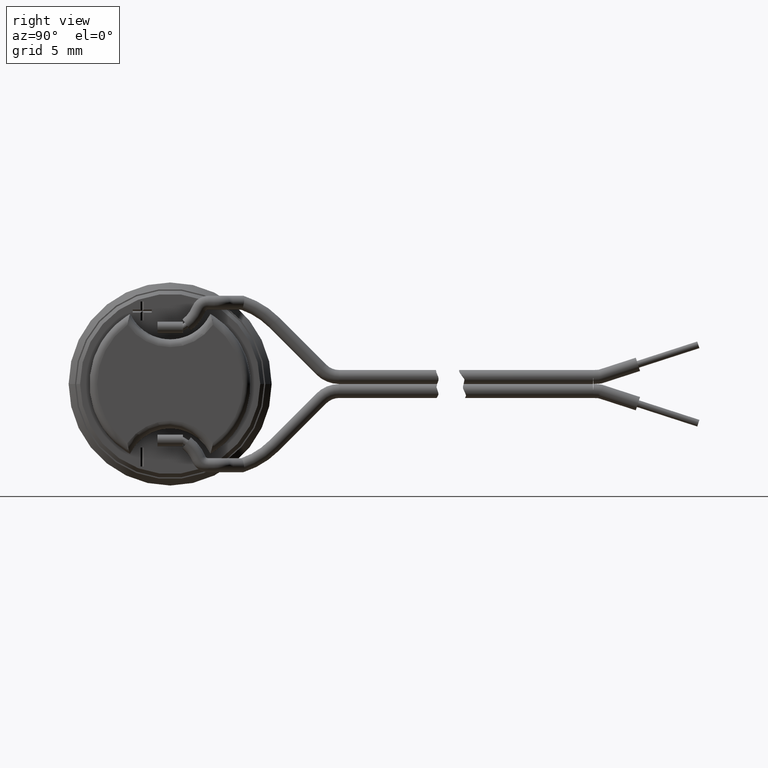
[diagram: clean part render]
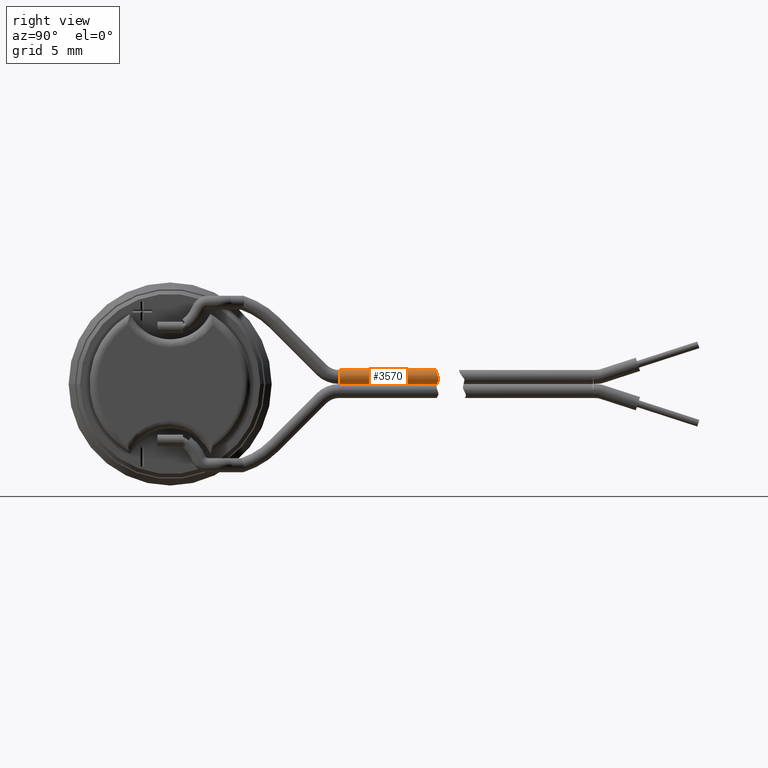
[diagram: same view with one face highlighted and labeled with its STEP entity id]
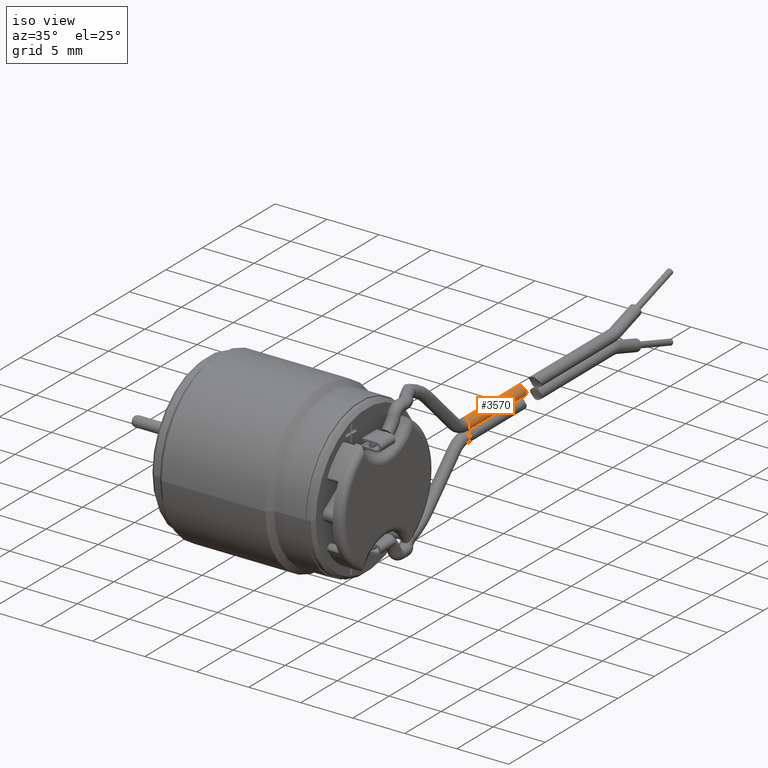
[diagram: same view with one face highlighted and labeled with its STEP entity id]
A machine part, right view. The second image highlights one B-rep face of the part: STEP entity #3570.
A second angle (iso view) of the same face is appended — the face is thin or edge-on in the first view.
In plain terms, the highlighted cylindrical surface (edge-blend (fillet) strip) has radius 0.55 mm, axis along (0, -1, 0).
Its self-contained STEP definition (entity closure, byte-faithful):
#394=CARTESIAN_POINT('',(2.240032756674E1,2.102917383916E1,-1.299233651828E-5));
#395=CARTESIAN_POINT('',(2.240662835466E1,2.102918072175E1,-1.299233651828E-5));
#396=CARTESIAN_POINT('',(2.241921226603E1,2.102943670138E1,1.036567337196E-3));
#397=CARTESIAN_POINT('',(2.243055763169E1,2.102915775201E1,-7.604514990970E-4));
#398=CARTESIAN_POINT('',(2.243684883472E1,2.102930460886E1,-3.271544999782E-4));
#400=DIRECTION('',(-4.252688399169E-5,-9.999999990943E-1,1.686751175852E-6));
#401=VECTOR('',#400,7.702580383094E0);
#402=CARTESIAN_POINT('',(2.240032756674E1,2.102917383916E1,-1.299233651828E-5));
#403=LINE('',#402,#401);
#404=CARTESIAN_POINT('',(2.243684883472E1,2.102930460886E1,-3.271544999782E-4));
#405=CARTESIAN_POINT('',(2.247929046929E1,2.103043461863E1,2.595948254658E-3));
#406=CARTESIAN_POINT('',(2.256434211359E1,2.103698319575E1,2.053481707774E-2));
#407=CARTESIAN_POINT('',(2.268145331142E1,2.105822283408E1,7.173819867061E-2));
#408=CARTESIAN_POINT('',(2.277832393670E1,2.108933735637E1,1.453775409042E-1));
#409=CARTESIAN_POINT('',(2.285229027858E1,2.112161624040E1,2.299739857906E-1));
#410=CARTESIAN_POINT('',(2.291433783856E1,2.115187070604E1,3.399565897218E-1));
#411=CARTESIAN_POINT('',(2.295139514514E1,2.114644704098E1,4.772950183468E-1));
#412=CARTESIAN_POINT('',(2.295176272406E1,2.110221046246E1,6.194673502704E-1));
#413=CARTESIAN_POINT('',(2.291502699354E1,2.104050357782E1,7.624170571036E-1));
#414=CARTESIAN_POINT('',(2.283383874046E1,2.098221698270E1,9.011612429808E-1));
#415=CARTESIAN_POINT('',(2.271122430566E1,2.095009002747E1,1.013364216562E0));
#416=CARTESIAN_POINT('',(2.256279798835E1,2.094162562422E1,1.083766945064E0));
#417=CARTESIAN_POINT('',(2.245425088054E1,2.094138193239E1,1.1E0));
#418=CARTESIAN_POINT('',(2.24E1,2.094138193239E1,1.1E0));
#420=CARTESIAN_POINT('',(2.24E1,2.094138193239E1,1.1E0));
#434=CARTESIAN_POINT('',(2.240032756674E1,2.102917383916E1,-1.299233651828E-5));
#436=DIRECTION('',(0.E0,-1.E0,0.E0));
#437=VECTOR('',#436,7.614788469354E0);
#438=CARTESIAN_POINT('',(2.24E1,2.094138193239E1,1.1E0));
#439=LINE('',#438,#437);
#458=CARTESIAN_POINT('',(2.243684883472E1,2.102930460886E1,-3.271544999782E-4));
#479=CARTESIAN_POINT('',(2.24E1,1.332659346304E1,5.5E-1));
#480=DIRECTION('',(0.E0,-1.E0,0.E0));
#481=DIRECTION('',(0.E0,0.E0,-1.E0));
#482=AXIS2_PLACEMENT_3D('',#479,#480,#481);
#2911=CARTESIAN_POINT('',(2.24E1,1.332659346304E1,0.E0));
#2912=CARTESIAN_POINT('',(2.24E1,1.332659346304E1,1.1E0));
#2913=VERTEX_POINT('',#2911);
#2914=VERTEX_POINT('',#2912);
#3106=VERTEX_POINT('',#458);
#3107=VERTEX_POINT('',#420);
#3108=VERTEX_POINT('',#434);
#3554=CARTESIAN_POINT('',(2.24E1,3.332659346304E1,5.5E-1));
#3555=DIRECTION('',(0.E0,-1.E0,0.E0));
#3556=DIRECTION('',(0.E0,0.E0,-1.E0));
#3557=AXIS2_PLACEMENT_3D('',#3554,#3555,#3556);
#3558=CYLINDRICAL_SURFACE('',#3557,5.5E-1);
#3559=ORIENTED_EDGE('',*,*,#3542,.F.);
#3561=ORIENTED_EDGE('',*,*,#3560,.T.);
#3563=ORIENTED_EDGE('',*,*,#3562,.T.);
#3565=ORIENTED_EDGE('',*,*,#3564,.F.);
#3567=ORIENTED_EDGE('',*,*,#3566,.F.);
#3568=EDGE_LOOP('',(#3559,#3561,#3563,#3565,#3567));
#3569=FACE_OUTER_BOUND('',#3568,.F.);
#3570=ADVANCED_FACE('',(#3569),#3558,.T.);
#399=B_SPLINE_CURVE_WITH_KNOTS('',3,(#394,#395,#396,#397,#398),.UNSPECIFIED.,
.F.,.F.,(4,1,4),(0.E0,5.E-1,1.E0),.UNSPECIFIED.);
#419=B_SPLINE_CURVE_WITH_KNOTS('',3,(#404,#405,#406,#407,#408,#409,#410,#411,
#412,#413,#414,#415,#416,#417,#418),.UNSPECIFIED.,.F.,.F.,(4,1,1,1,1,1,1,1,1,1,
1,1,4),(0.E0,8.333333333333E-2,1.666666666667E-1,2.5E-1,3.333333333333E-1,
4.166666666667E-1,5.E-1,5.833333333333E-1,6.666666666667E-1,7.5E-1,
8.333333333333E-1,9.166666666667E-1,1.E0),.UNSPECIFIED.);
#483=CIRCLE('',#482,5.5E-1);
#3542=EDGE_CURVE('',#3108,#3106,#399,.T.);
#3560=EDGE_CURVE('',#3108,#2913,#403,.T.);
#3562=EDGE_CURVE('',#2913,#2914,#483,.T.);
#3564=EDGE_CURVE('',#3107,#2914,#439,.T.);
#3566=EDGE_CURVE('',#3106,#3107,#419,.T.);